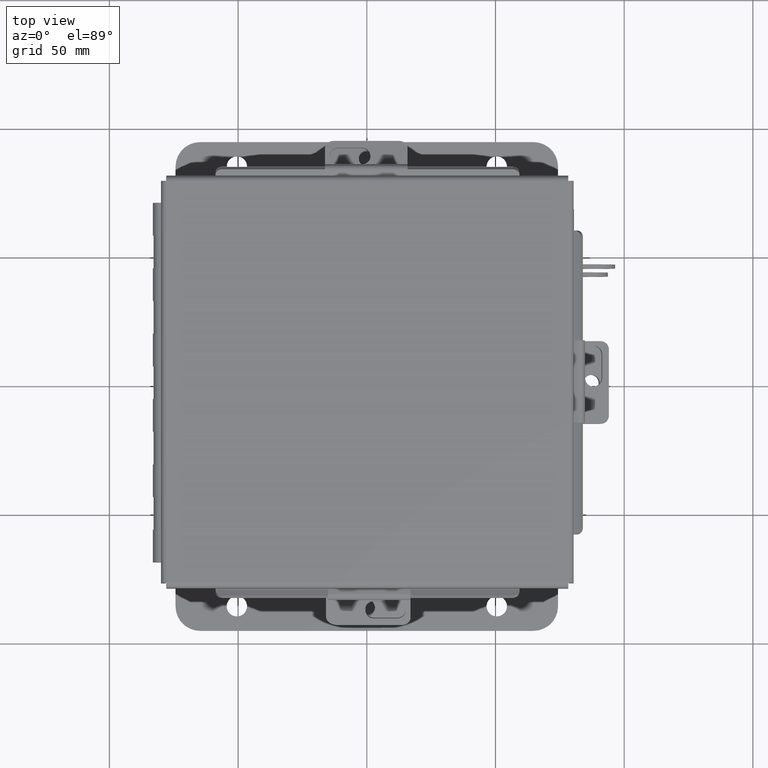
[diagram: clean part render]
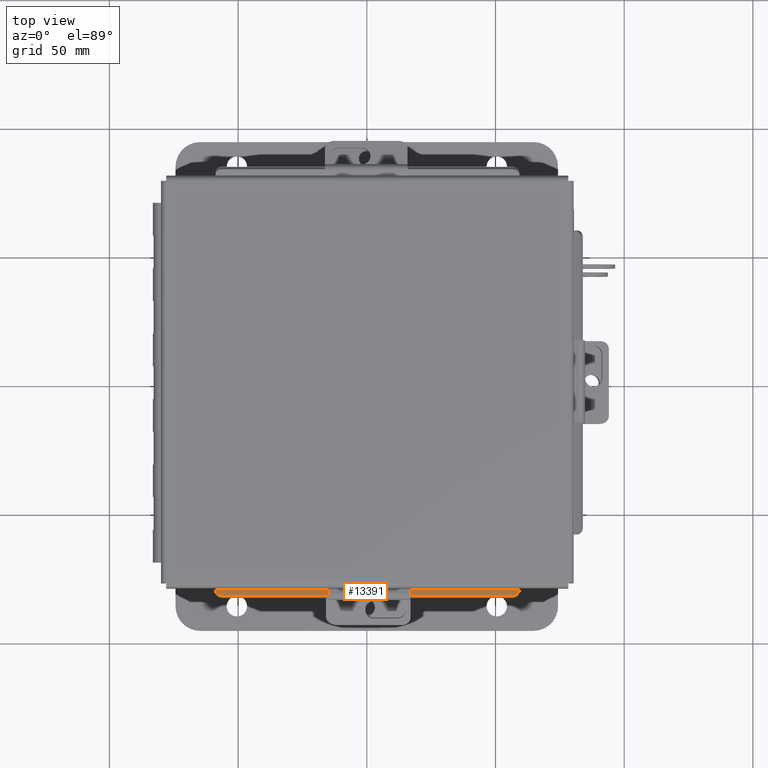
[diagram: same view with one face highlighted and labeled with its STEP entity id]
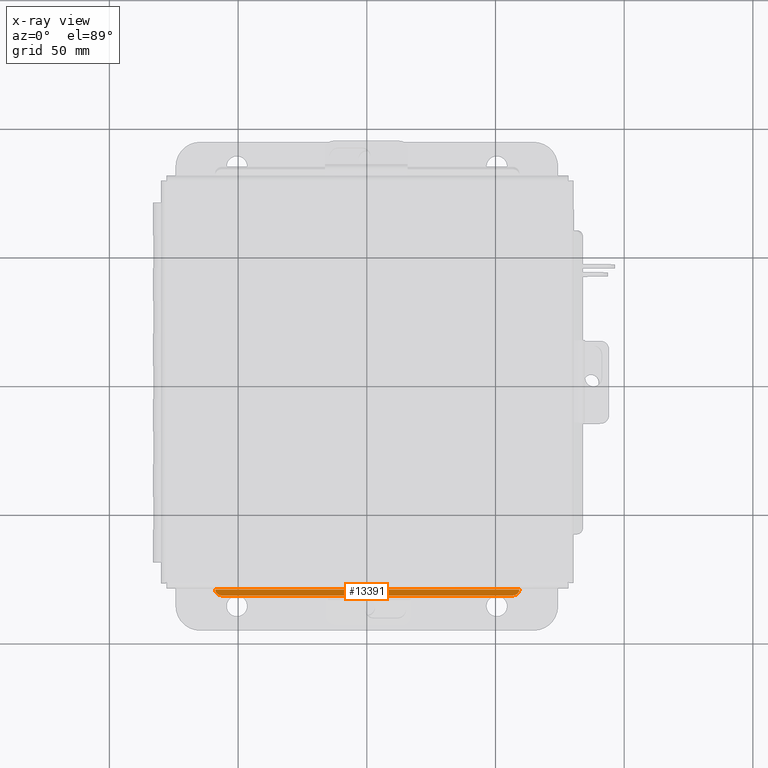
[diagram: x-ray of the same camera — body ghosted, the highlighted face saturated]
A machine part, top view. The second image highlights one B-rep face of the part: STEP entity #13391.
The next image is the same camera in x-ray: the body ghosted, the highlighted face saturated — about 0% of this face is hidden behind the body in this view.
In plain terms, the highlighted planar face has unit normal (-0, 0.5, 0.866).
Its self-contained STEP definition (entity closure, byte-faithful):
#321 = DIRECTION ( 'NONE',  ( -0.0000000000000000000, -0.8660254037844373800, -0.5000000000000023300 ) ) ;
#351 = CARTESIAN_POINT ( 'NONE',  ( 2.224478932188135100, -3.260706350946111600, 0.4269920976626972500 ) ) ;
#452 = ORIENTED_EDGE ( 'NONE', *, *, #7489, .T. ) ;
#781 = ORIENTED_EDGE ( 'NONE', *, *, #2952, .T. ) ;
#995 = VERTEX_POINT ( 'NONE', #13432 ) ;
#1075 = VECTOR ( 'NONE', #5018, 39.37007874015748100 ) ;
#1241 = DIRECTION ( 'NONE',  ( -4.604011513242101000E-017, 0.5000000000000023300, -0.8660254037844373800 ) ) ;
#1402 = AXIS2_PLACEMENT_3D ( 'NONE', #9634, #3037, #10731 ) ;
#1433 = ORIENTED_EDGE ( 'NONE', *, *, #11117, .F. ) ;
#1878 = CARTESIAN_POINT ( 'NONE',  ( 2.324478932188135200, -3.169750000000001400, 0.4795057713659401900 ) ) ;
#2025 = VECTOR ( 'NONE', #3636, 39.37007874015748100 ) ;
#2465 = VERTEX_POINT ( 'NONE', #12849 ) ;
#2952 = EDGE_CURVE ( 'NONE', #5279, #3354, #4033, .T. ) ;
#2987 = EDGE_LOOP ( 'NONE', ( #5883, #781, #12953, #452, #6951, #1433 ) ) ;
#3037 = DIRECTION ( 'NONE',  ( -4.604011513242101000E-017, 0.5000000000000023300, -0.8660254037844372600 ) ) ;
#3354 = VERTEX_POINT ( 'NONE', #351 ) ;
#3427 = CARTESIAN_POINT ( 'NONE',  ( 2.324478932188135200, -3.260706350946111600, 0.4269920976626972500 ) ) ;
#3623 = VERTEX_POINT ( 'NONE', #1878 ) ;
#3636 = DIRECTION ( 'NONE',  ( -0.0000000000000000000, 0.8660254037844379300, 0.5000000000000012200 ) ) ;
#3982 = VECTOR ( 'NONE', #321, 39.37007874015748900 ) ;
#4015 = DIRECTION ( 'NONE',  ( -4.604011513242101000E-017, 0.5000000000000023300, -0.8660254037844372600 ) ) ;
#4033 = CIRCLE ( 'NONE', #1402, 0.09999999999999986700 ) ;
#4431 = FACE_OUTER_BOUND ( 'NONE', #2987, .T. ) ;
#4435 = CIRCLE ( 'NONE', #8080, 0.09999999999999986700 ) ;
#4726 = CARTESIAN_POINT ( 'NONE',  ( 2.324478932188135200, -3.156250000000001800, 0.4872999999999999600 ) ) ;
#4871 = VERTEX_POINT ( 'NONE', #6475 ) ;
#5018 = DIRECTION ( 'NONE',  ( -1.000000000000000000, 2.350503552288729800E-016, 1.175251776144364900E-016 ) ) ;
#5133 = EDGE_CURVE ( 'NONE', #995, #4871, #9505, .T. ) ;
#5279 = VERTEX_POINT ( 'NONE', #6649 ) ;
#5603 = PLANE ( 'NONE',  #7958 ) ;
#5883 = ORIENTED_EDGE ( 'NONE', *, *, #8187, .F. ) ;
#6475 = CARTESIAN_POINT ( 'NONE',  ( -2.324478932188136100, -3.174103810567667800, 0.4769920976626974600 ) ) ;
#6649 = CARTESIAN_POINT ( 'NONE',  ( 2.324478932188135200, -3.174103810567667800, 0.4769920976626972300 ) ) ;
#6908 = CARTESIAN_POINT ( 'NONE',  ( -2.324478932188136100, -3.260706350946111600, 0.4269920976626973000 ) ) ;
#6923 = LINE ( 'NONE', #12702, #1075 ) ;
#6951 = ORIENTED_EDGE ( 'NONE', *, *, #5133, .F. ) ;
#7489 = EDGE_CURVE ( 'NONE', #2465, #4871, #4435, .T. ) ;
#7821 = CARTESIAN_POINT ( 'NONE',  ( 9.208663809418824900E-017, -1.000069589632087500, 1.732171340347322000 ) ) ;
#7958 = AXIS2_PLACEMENT_3D ( 'NONE', #7821, #1241, #8930 ) ;
#8080 = AXIS2_PLACEMENT_3D ( 'NONE', #10622, #4015, #11715 ) ;
#8187 = EDGE_CURVE ( 'NONE', #5279, #3623, #13705, .T. ) ;
#8930 = DIRECTION ( 'NONE',  ( 0.0000000000000000000, 0.8660254037844373800, 0.5000000000000023300 ) ) ;
#9505 = LINE ( 'NONE', #6908, #3982 ) ;
#9634 = CARTESIAN_POINT ( 'NONE',  ( 2.224478932188135100, -3.174103810567668200, 0.4769920976626980700 ) ) ;
#10622 = CARTESIAN_POINT ( 'NONE',  ( -2.224478932188136400, -3.174103810567668200, 0.4769920976626983400 ) ) ;
#10731 = DIRECTION ( 'NONE',  ( 0.0000000000000000000, 0.8660254037844370400, 0.5000000000000028900 ) ) ;
#11117 = EDGE_CURVE ( 'NONE', #3623, #995, #6923, .T. ) ;
#11527 = LINE ( 'NONE', #3427, #14111 ) ;
#11715 = DIRECTION ( 'NONE',  ( 0.0000000000000000000, 0.8660254037844370400, 0.5000000000000028900 ) ) ;
#11980 = EDGE_CURVE ( 'NONE', #2465, #3354, #11527, .T. ) ;
#12216 = DIRECTION ( 'NONE',  ( 1.000000000000000000, -0.0000000000000000000, -1.469064720180456100E-017 ) ) ;
#12702 = CARTESIAN_POINT ( 'NONE',  ( 2.324478932188135200, -3.169750000000001800, 0.4795057713659400300 ) ) ;
#12849 = CARTESIAN_POINT ( 'NONE',  ( -2.224478932188136400, -3.260706350946111600, 0.4269920976626973000 ) ) ;
#12953 = ORIENTED_EDGE ( 'NONE', *, *, #11980, .F. ) ;
#13391 = ADVANCED_FACE ( 'NONE', ( #4431 ), #5603, .T. ) ;
#13432 = CARTESIAN_POINT ( 'NONE',  ( -2.324478932188136100, -3.169750000000001400, 0.4795057713659401900 ) ) ;
#13705 = LINE ( 'NONE', #4726, #2025 ) ;
#14111 = VECTOR ( 'NONE', #12216, 39.37007874015748100 ) ;